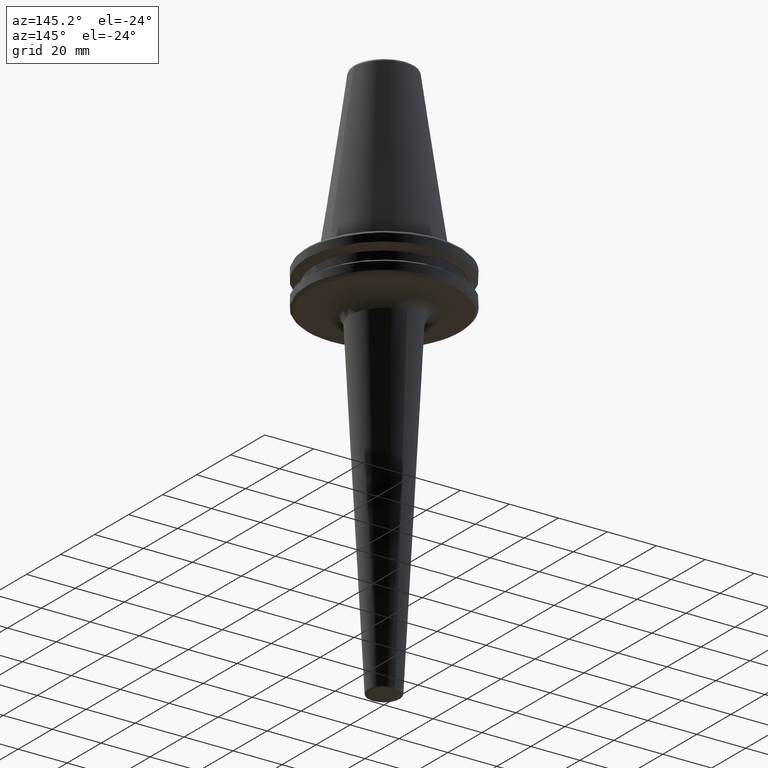
[diagram: clean part render]
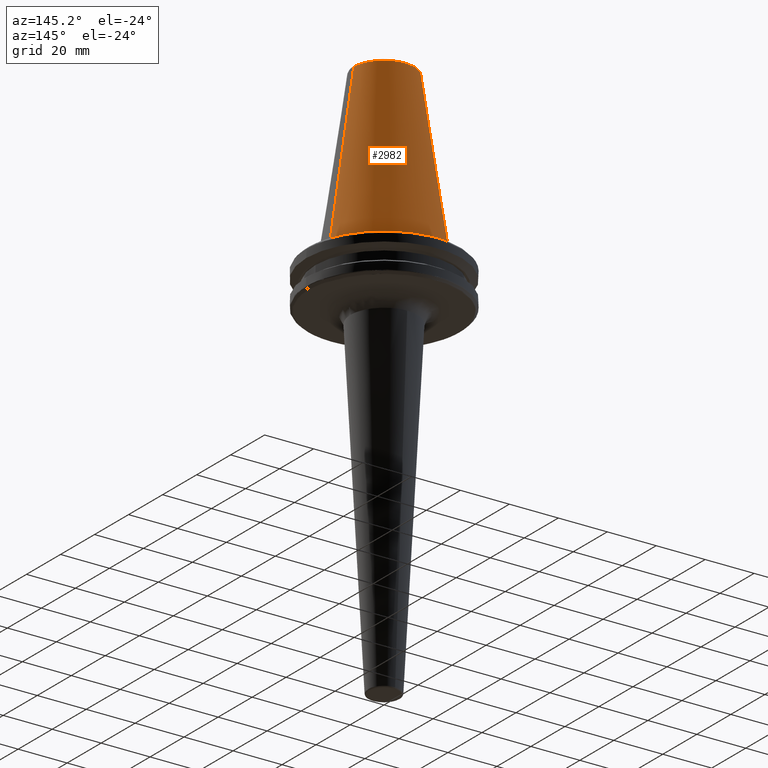
[diagram: same view with one face highlighted and labeled with its STEP entity id]
A machine part, auxiliary view. The second image highlights one B-rep face of the part: STEP entity #2982.
In plain terms, the highlighted conical surface has half-angle 8.297 deg.
Its self-contained STEP definition (entity closure, byte-faithful):
#11 = ORIENTED_EDGE ( 'NONE', *, *, #314, .F. ) ;
#222 = AXIS2_PLACEMENT_3D ( 'NONE', #2074, #2061, #1852 ) ;
#314 = EDGE_CURVE ( 'NONE', #2128, #2821, #2237, .T. ) ;
#339 = VECTOR ( 'NONE', #2422, 1000.000000000000000 ) ;
#453 = ORIENTED_EDGE ( 'NONE', *, *, #654, .T. ) ;
#472 = CARTESIAN_POINT ( 'NONE',  ( 0.0000000000000000000, 0.0000000000000000000, 0.0000000000000000000 ) ) ;
#654 = EDGE_CURVE ( 'NONE', #1487, #2821, #2010, .T. ) ;
#865 = ORIENTED_EDGE ( 'NONE', *, *, #1076, .T. ) ;
#899 = CARTESIAN_POINT ( 'NONE',  ( 0.0000000000000000000, 0.0000000000000000000, 0.0000000000000000000 ) ) ;
#905 = CIRCLE ( 'NONE', #222, 12.37469537611110800 ) ;
#962 = LINE ( 'NONE', #2022, #339 ) ;
#1065 = AXIS2_PLACEMENT_3D ( 'NONE', #899, #2079, #1648 ) ;
#1076 = EDGE_CURVE ( 'NONE', #1991, #1487, #905, .T. ) ;
#1234 = AXIS2_PLACEMENT_3D ( 'NONE', #472, #2357, #1895 ) ;
#1302 = EDGE_CURVE ( 'NONE', #1991, #2128, #962, .T. ) ;
#1487 = VERTEX_POINT ( 'NONE', #2055 ) ;
#1648 = DIRECTION ( 'NONE',  ( 1.000000000000000000, 0.0000000000000000000, 9.822541477422708000E-017 ) ) ;
#1819 = CARTESIAN_POINT ( 'NONE',  ( 22.22500000000000100, 2.721777511104992800E-015, 0.0000000000000000000 ) ) ;
#1852 = DIRECTION ( 'NONE',  ( -1.000000000000000000, 0.0000000000000000000, 0.0000000000000000000 ) ) ;
#1882 = ORIENTED_EDGE ( 'NONE', *, *, #1302, .F. ) ;
#1895 = DIRECTION ( 'NONE',  ( -1.000000000000000000, 0.0000000000000000000, 0.0000000000000000000 ) ) ;
#1991 = VERTEX_POINT ( 'NONE', #2582 ) ;
#2010 = LINE ( 'NONE', #1819, #2941 ) ;
#2022 = CARTESIAN_POINT ( 'NONE',  ( -22.22500000000000100, 0.0000000000000000000, 0.0000000000000000000 ) ) ;
#2055 = CARTESIAN_POINT ( 'NONE',  ( 12.37469537611110800, 2.118620309691397300E-015, 67.54430822726729400 ) ) ;
#2061 = DIRECTION ( 'NONE',  ( 0.0000000000000000000, 0.0000000000000000000, -1.000000000000000000 ) ) ;
#2074 = CARTESIAN_POINT ( 'NONE',  ( 0.0000000000000000000, 0.0000000000000000000, 67.54430822726729400 ) ) ;
#2079 = DIRECTION ( 'NONE',  ( -0.0000000000000000000, -0.0000000000000000000, -1.000000000000000000 ) ) ;
#2085 = CONICAL_SURFACE ( 'NONE', #1234, 22.22500000000000100, 0.1448138465474190500 ) ;
#2128 = VERTEX_POINT ( 'NONE', #2437 ) ;
#2221 = FACE_OUTER_BOUND ( 'NONE', #2719, .T. ) ;
#2237 = CIRCLE ( 'NONE', #1065, 22.22500000000000500 ) ;
#2357 = DIRECTION ( 'NONE',  ( 0.0000000000000000000, 0.0000000000000000000, -1.000000000000000000 ) ) ;
#2422 = DIRECTION ( 'NONE',  ( -0.1443082272673070500, 0.0000000000000000000, -0.9895327864921743500 ) ) ;
#2437 = CARTESIAN_POINT ( 'NONE',  ( -22.22500000000000100, 0.0000000000000000000, 0.0000000000000000000 ) ) ;
#2582 = CARTESIAN_POINT ( 'NONE',  ( -12.37469537611110800, 0.0000000000000000000, 67.54430822726729400 ) ) ;
#2719 = EDGE_LOOP ( 'NONE', ( #865, #453, #11, #1882 ) ) ;
#2821 = VERTEX_POINT ( 'NONE', #3009 ) ;
#2941 = VECTOR ( 'NONE', #2988, 1000.000000000000000 ) ;
#2982 = ADVANCED_FACE ( 'NONE', ( #2221 ), #2085, .T. ) ;
#2988 = DIRECTION ( 'NONE',  ( 0.1443082272673070500, 1.767266086135363700E-017, -0.9895327864921743500 ) ) ;
#3009 = CARTESIAN_POINT ( 'NONE',  ( 22.22500000000000100, 2.721777511104992800E-015, 0.0000000000000000000 ) ) ;